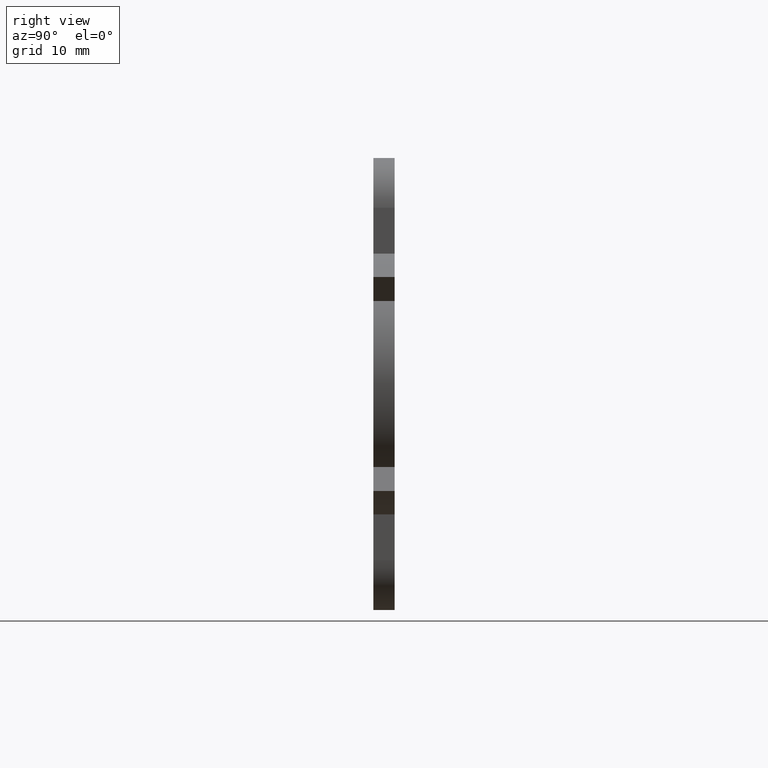
[diagram: clean part render]
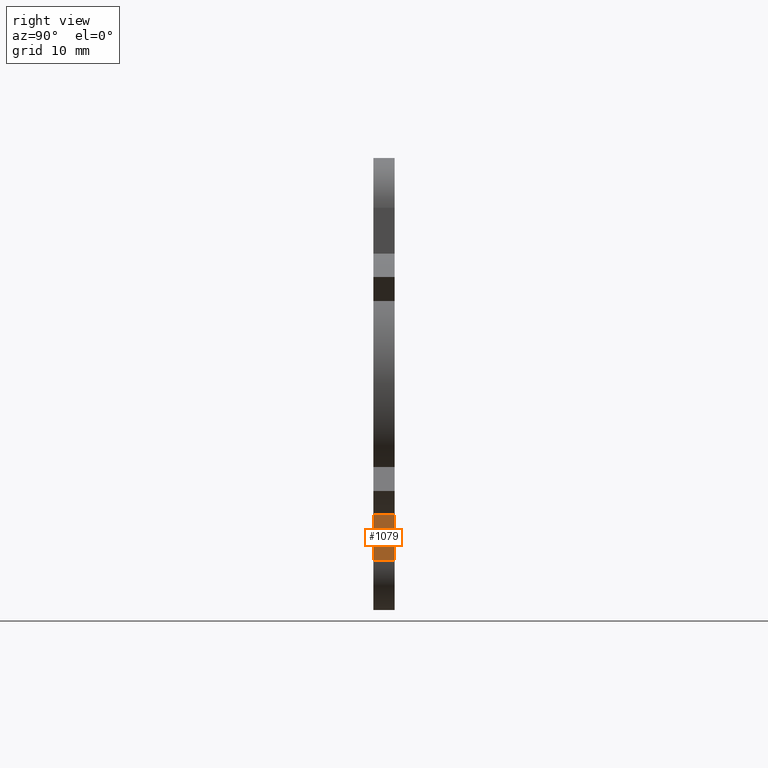
[diagram: same view with one face highlighted and labeled with its STEP entity id]
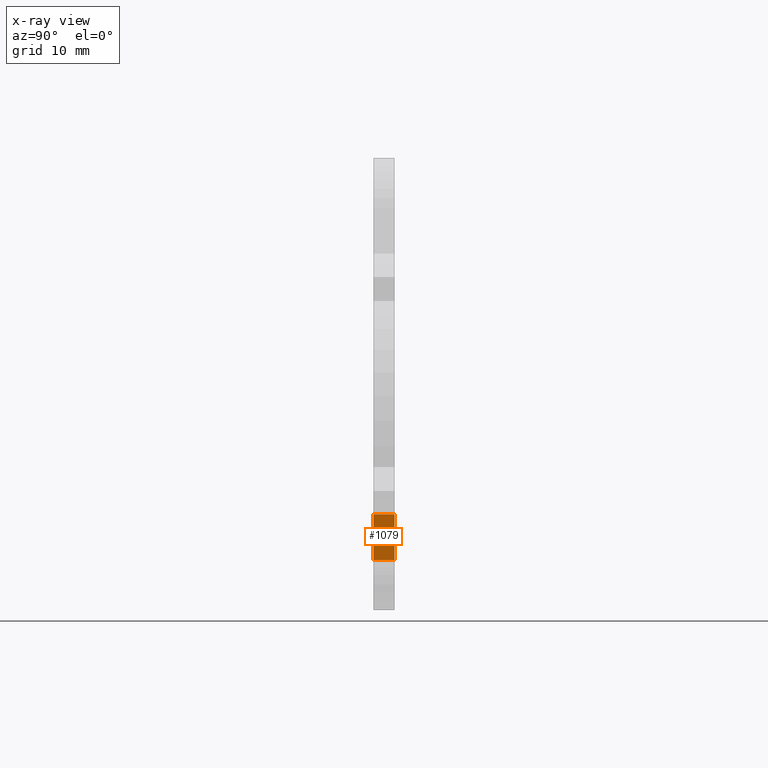
[diagram: x-ray of the same camera — body ghosted, the highlighted face saturated]
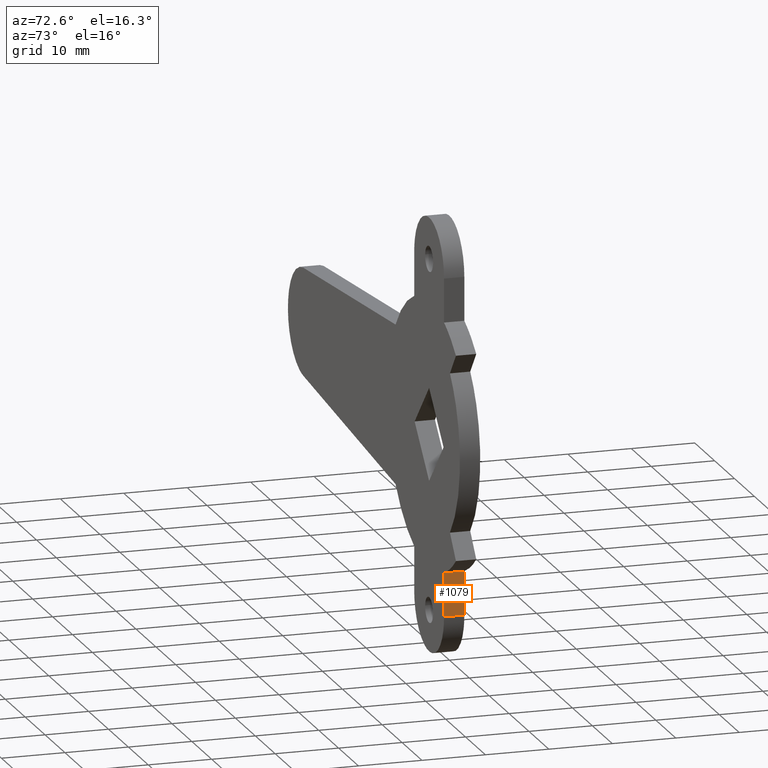
[diagram: same view with one face highlighted and labeled with its STEP entity id]
A machine part, right view. The second image highlights one B-rep face of the part: STEP entity #1079.
The next image is the same camera in x-ray: the body ghosted, the highlighted face saturated — about 0% of this face is hidden behind the body in this view.
A second angle (auxiliary view) of the same face is appended — the face is thin or edge-on in the first view.
In plain terms, the highlighted face is a freeform B-spline surface patch.
Its self-contained STEP definition (entity closure, byte-faithful):
#505=CARTESIAN_POINT('',(7.500000000000000,0.0,-19.615045245933050));
#506=VERTEX_POINT('',#505);
#520=CARTESIAN_POINT('',(7.500000000000000,0.0,-26.500000000000000));
#521=VERTEX_POINT('',#520);
#522=CARTESIAN_POINT('',(7.500000000000000,0.0,-26.500000000000000));
#523=CARTESIAN_POINT('',(7.500000000000000,0.0,-19.615045245933050));
#524=QUASI_UNIFORM_CURVE('',1,(#522,#523),.UNSPECIFIED.,.F.,.U.);
#525=EDGE_CURVE('',#521,#506,#524,.T.);
#715=CARTESIAN_POINT('',(7.500000000000000,-3.199998000000035,-26.500000000000000));
#716=VERTEX_POINT('',#715);
#732=CARTESIAN_POINT('',(7.500000000000000,-3.199998000000035,-19.615045245933050));
#733=VERTEX_POINT('',#732);
#734=CARTESIAN_POINT('',(7.500000000000000,-3.199998000000035,-26.500000000000000));
#735=CARTESIAN_POINT('',(7.500000000000000,-3.199998000000035,-19.615045245933050));
#736=QUASI_UNIFORM_CURVE('',1,(#734,#735),.UNSPECIFIED.,.F.,.U.);
#737=EDGE_CURVE('',#716,#733,#736,.T.);
#1056=CARTESIAN_POINT('',(7.500000000000000,-3.199998000000035,-19.615045245933050));
#1057=CARTESIAN_POINT('',(7.500000000000000,0.0,-19.615045245933050));
#1058=QUASI_UNIFORM_CURVE('',1,(#1056,#1057),.UNSPECIFIED.,.F.,.U.);
#1059=EDGE_CURVE('',#733,#506,#1058,.T.);
#1064=CARTESIAN_POINT('',(7.500000000000000,-3.359837803779946,-26.843903452023380));
#1065=CARTESIAN_POINT('',(7.500000000000000,-3.359837803779946,-19.271142101691130));
#1066=CARTESIAN_POINT('',(7.500000000000000,0.159839975441179,-26.843903452023380));
#1067=CARTESIAN_POINT('',(7.500000000000000,0.159839975441179,-19.271142101691130));
#1068=B_SPLINE_SURFACE_WITH_KNOTS('',1,1,((#1064,#1066),(#1065,#1067)),.UNSPECIFIED.,.F.,.F.,.U.,(2,2),(2,2),(0.0,7.572761350332242),(0.0,3.519677779221125),.UNSPECIFIED.);
#1069=ORIENTED_EDGE('',*,*,#525,.T.);
#1070=ORIENTED_EDGE('',*,*,#1059,.F.);
#1071=ORIENTED_EDGE('',*,*,#737,.F.);
#1072=CARTESIAN_POINT('',(7.500000000000000,-3.199998000000035,-26.500000000000000));
#1073=CARTESIAN_POINT('',(7.500000000000000,0.0,-26.500000000000000));
#1074=QUASI_UNIFORM_CURVE('',1,(#1072,#1073),.UNSPECIFIED.,.F.,.U.);
#1075=EDGE_CURVE('',#716,#521,#1074,.T.);
#1076=ORIENTED_EDGE('',*,*,#1075,.T.);
#1077=EDGE_LOOP('',(#1069,#1070,#1071,#1076));
#1078=FACE_OUTER_BOUND('',#1077,.T.);
#1079=ADVANCED_FACE('',(#1078),#1068,.F.);